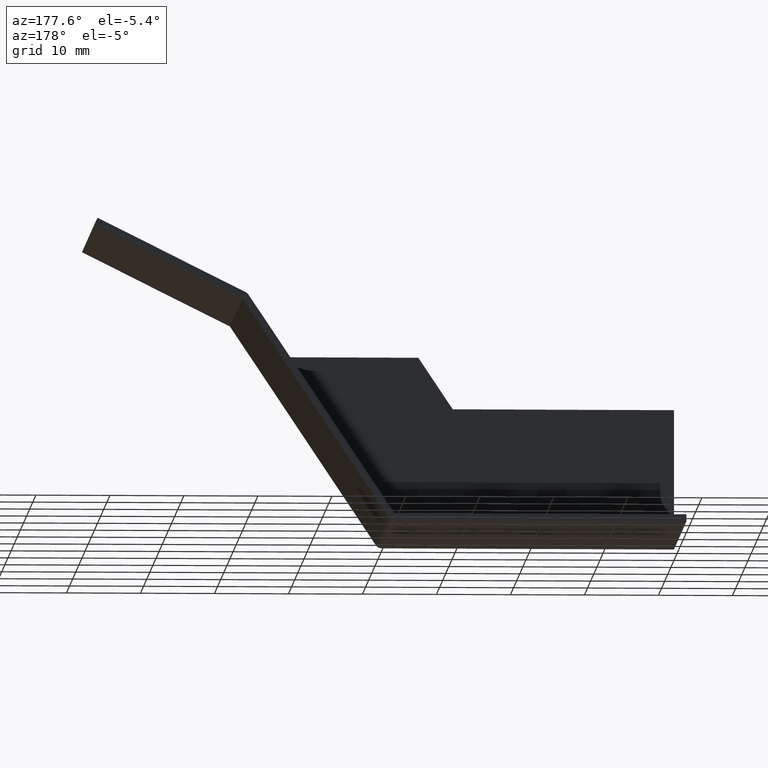
[diagram: clean part render]
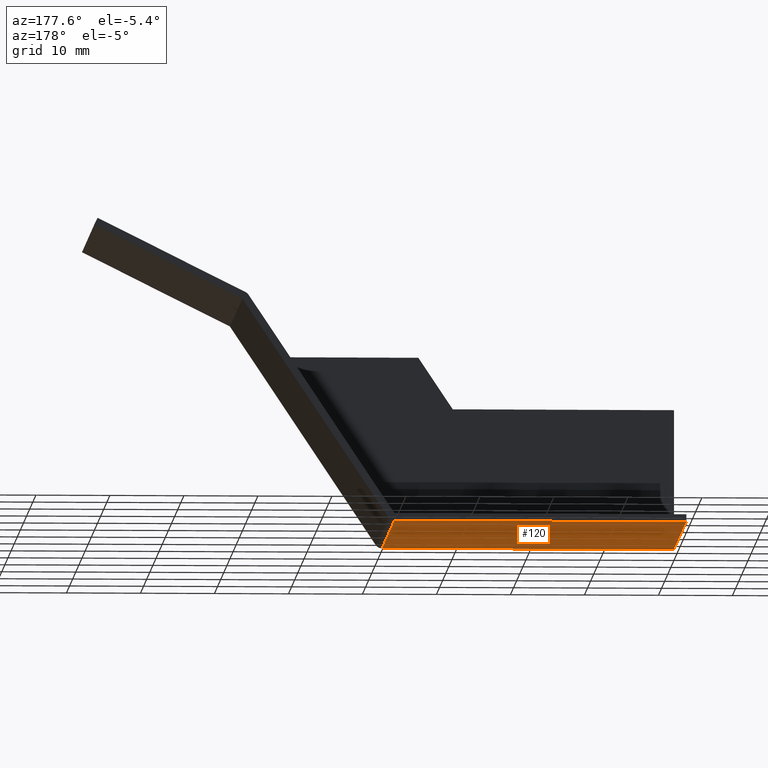
[diagram: same view with one face highlighted and labeled with its STEP entity id]
A machine part, auxiliary view. The second image highlights one B-rep face of the part: STEP entity #120.
In plain terms, the highlighted planar face has unit normal (0, 0, 1).
Its self-contained STEP definition (entity closure, byte-faithful):
#120 = ADVANCED_FACE( '', ( #245 ), #246, .F. );
#245 = FACE_OUTER_BOUND( '', #391, .T. );
#246 = PLANE( '', #392 );
#391 = EDGE_LOOP( '', ( #671, #672, #673, #674 ) );
#392 = AXIS2_PLACEMENT_3D( '', #675, #676, #677 );
#671 = ORIENTED_EDGE( '', *, *, #836, .T. );
#672 = ORIENTED_EDGE( '', *, *, #809, .F. );
#673 = ORIENTED_EDGE( '', *, *, #783, .F. );
#674 = ORIENTED_EDGE( '', *, *, #868, .F. );
#675 = CARTESIAN_POINT( '', ( 0.000000000000000, 0.000000000000000, 0.000000000000000 ) );
#676 = DIRECTION( '', ( 0.000000000000000, 0.000000000000000, 1.00000000000000 ) );
#677 = DIRECTION( '', ( 1.00000000000000, 0.000000000000000, 0.000000000000000 ) );
#783 = EDGE_CURVE( '', #919, #914, #921, .T. );
#809 = EDGE_CURVE( '', #914, #960, #961, .F. );
#836 = EDGE_CURVE( '', #888, #960, #996, .T. );
#868 = EDGE_CURVE( '', #888, #919, #1034, .T. );
#888 = VERTEX_POINT( '', #1054 );
#914 = VERTEX_POINT( '', #1090 );
#919 = VERTEX_POINT( '', #1097 );
#921 = LINE( '', #1100, #1101 );
#960 = VERTEX_POINT( '', #1165 );
#961 = LINE( '', #1166, #1167 );
#996 = LINE( '', #1224, #1225 );
#1034 = LINE( '', #1284, #1285 );
#1054 = CARTESIAN_POINT( '', ( 39.4637458739951, 0.000000000000000, 0.000000000000000 ) );
#1090 = CARTESIAN_POINT( '', ( -9.61835346861352E-020, -39.9980000000000, 1.50275930222718E-032 ) );
#1097 = CARTESIAN_POINT( '', ( 0.000000000000000, 0.000000000000000, 0.000000000000000 ) );
#1100 = CARTESIAN_POINT( '', ( 0.000000000000000, 0.000000000000000, 0.000000000000000 ) );
#1101 = VECTOR( '', #1327, 1000.00000000000 );
#1165 = CARTESIAN_POINT( '', ( 39.4637458739951, -39.9980000000007, -7.62681130457355E-029 ) );
#1166 = CARTESIAN_POINT( '', ( -1.09893488159719E-017, -39.9980000000000, 0.000000000000000 ) );
#1167 = VECTOR( '', #1352, 1000.00000000000 );
#1224 = CARTESIAN_POINT( '', ( 39.4637458739951, 0.000000000000000, 0.000000000000000 ) );
#1225 = VECTOR( '', #1378, 1000.00000000000 );
#1284 = CARTESIAN_POINT( '', ( 0.000000000000000, 0.000000000000000, 0.000000000000000 ) );
#1285 = VECTOR( '', #1400, 1000.00000000000 );
#1327 = DIRECTION( '', ( 0.000000000000000, -1.00000000000000, 0.000000000000000 ) );
#1352 = DIRECTION( '', ( -1.00000000000000, 0.000000000000000, 1.09893488159719E-017 ) );
#1378 = DIRECTION( '', ( 0.000000000000000, -1.00000000000000, 0.000000000000000 ) );
#1400 = DIRECTION( '', ( -1.00000000000000, 0.000000000000000, 0.000000000000000 ) );